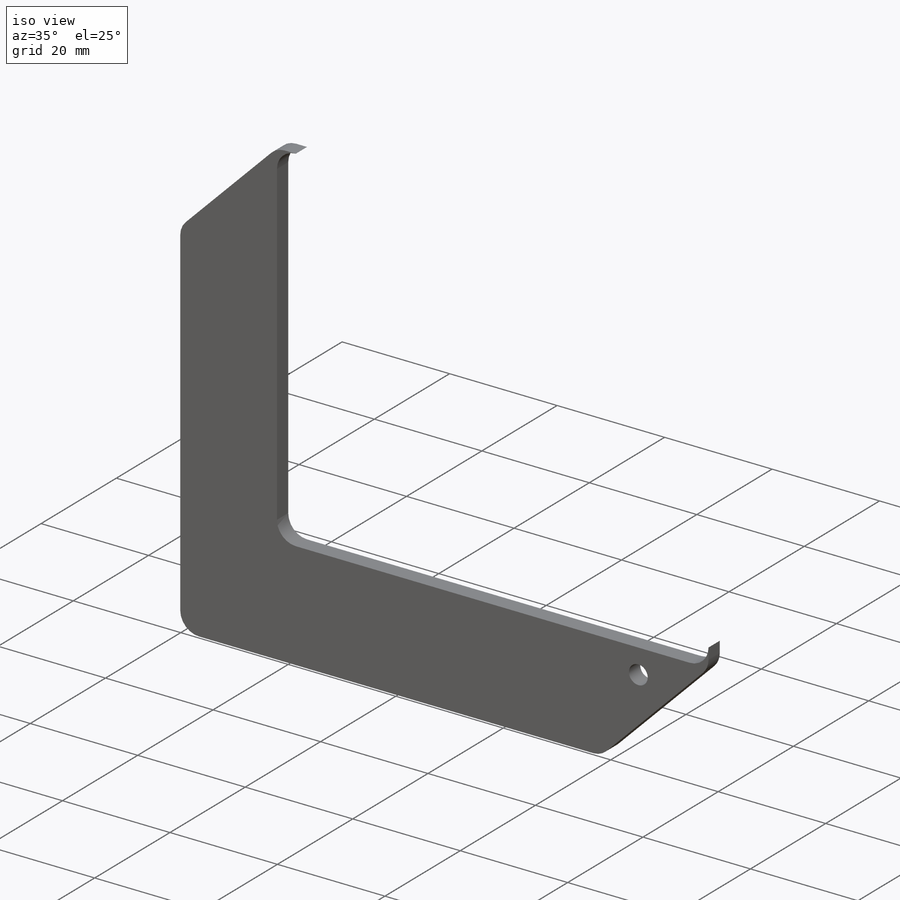
[diagram: iso view]
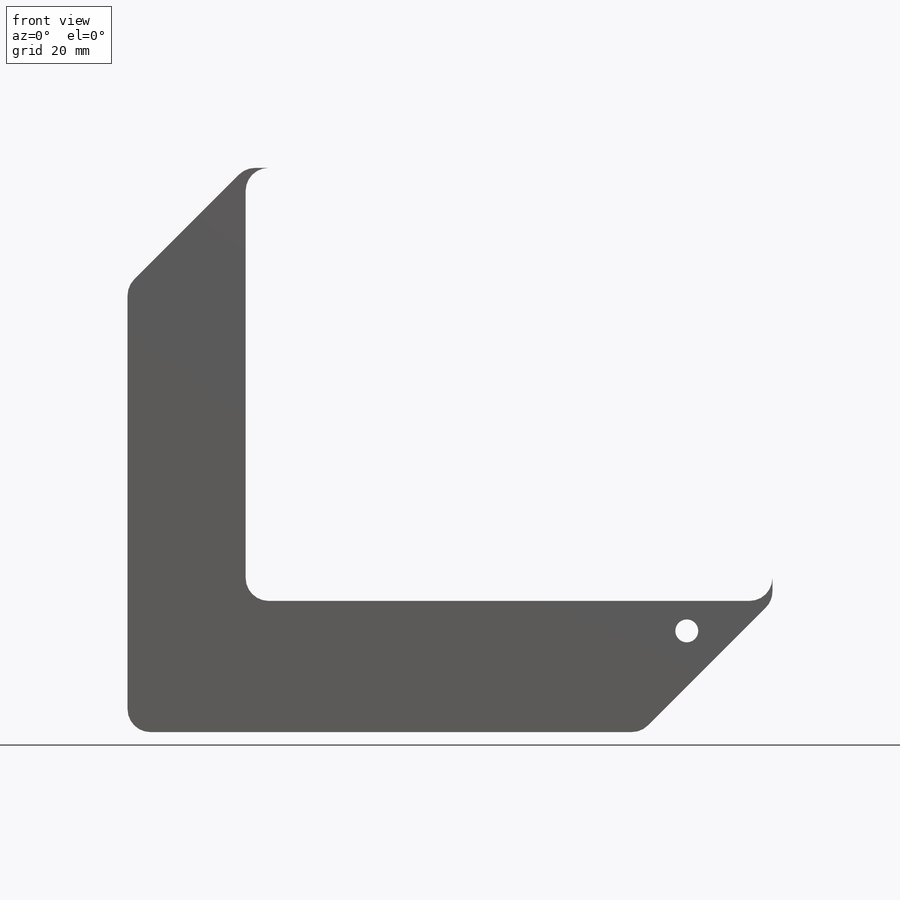
[diagram: front view]
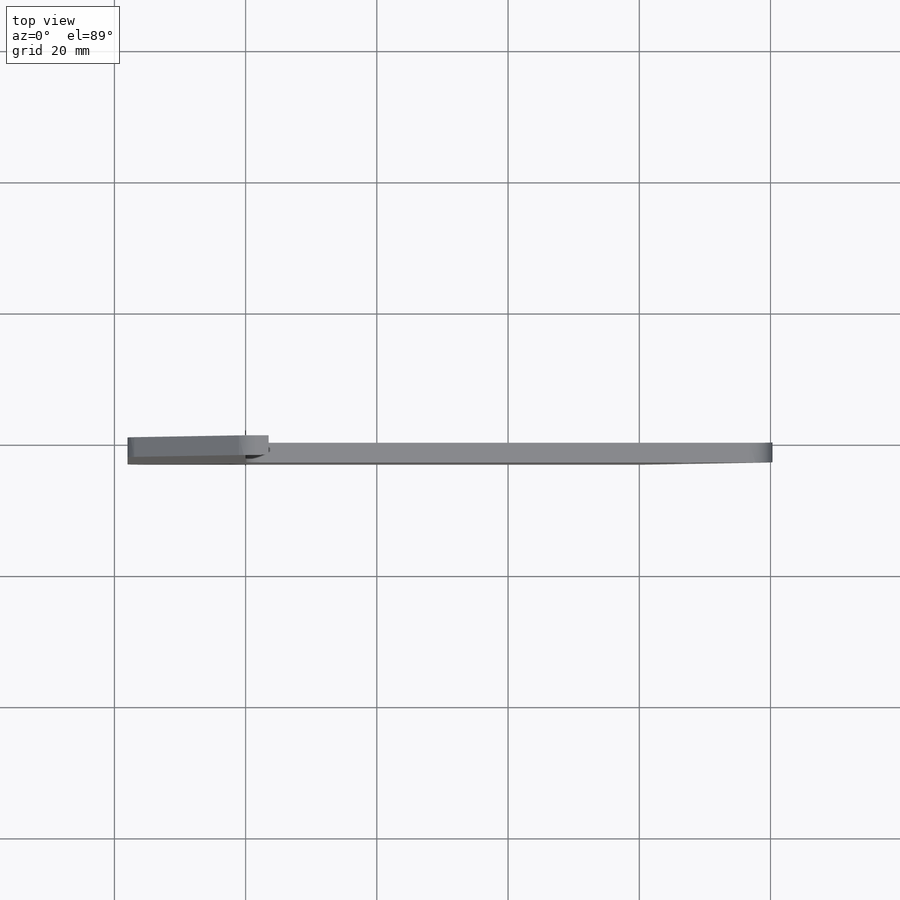
[diagram: top view]
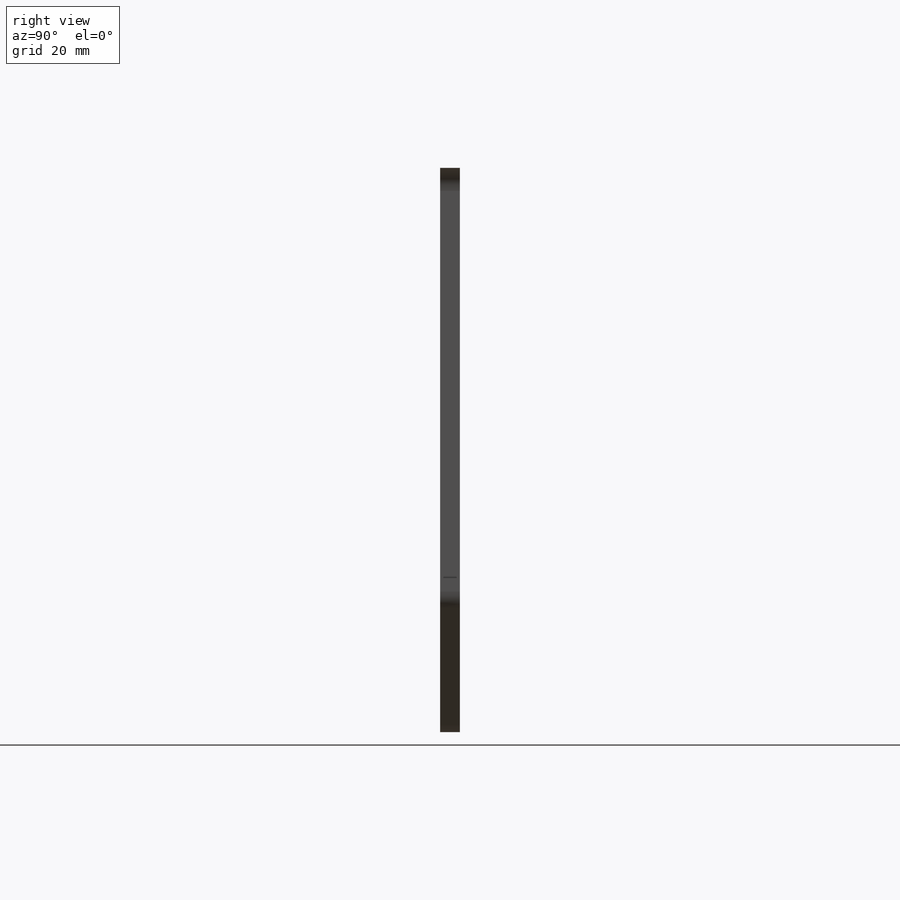
[diagram: right view]
SOLIDWORKS PART (.sldprt)
format: sldprt  version: not decoded by parser v0  size: 212,992 bytes
history: native  units: mm
features: sketch x4, fillet x2, material x1, extrude x1, cut_extrude x1, hole x1 (+12 scaffold rows collapsed)
feature tree (22):
  scaffold x12  (default folders/planes/origin — collapsed)
  material  "Acrylic (Medium-high impact)"
  sketch  "Sketch1"  dims[c1.D1=80.3mm c1.D2=66.0mm c1.D3=20.0mm c1.D4=18.0mm c1.D5=18.5mm c2.D5=40.0deg c2.D6=~17.589622mm c3.D6=~133.554993deg c4.D6=~25.527334mm c5.D6=45.0deg c5.D5=~23.835072mm c6.D5=45.0deg]
  extrude  "Boss-Extrude1"  Depth=3mm
  fillet  "Fillet1"  Radius=3.5mm
  sketch  "Sketch2"  dims[D1=7.0mm D2=7.0mm D3=7.0mm]
  cut_extrude  "Cut-Extrude1"  [1 undecoded]
  fillet  "Fillet2"  Radius=3.5mm
  hole  "Ø3.5 (3.5) Diameter Hole1"  Diameter=3.5mm Depth=3mm
  sketch  "Sketch4"  dims[c1.D1=10.0mm c1.D2=13.0mm c2.D1=15.43mm c2.D2=13.06mm]
  sketch  "Sketch3"  dims[hole-wizard template sketch: 60 standard entries collapsed; hole parameters kept: c18.Thru Hole Depth=3.0mm]
decode coverage: 8 of 9 modeling features carry decoded parameters
note: ~ marks probable driven/reference dimensions
note: 1 parameter value undecoded
note: suppression state not decoded; provenance and decode notes live in map.json
